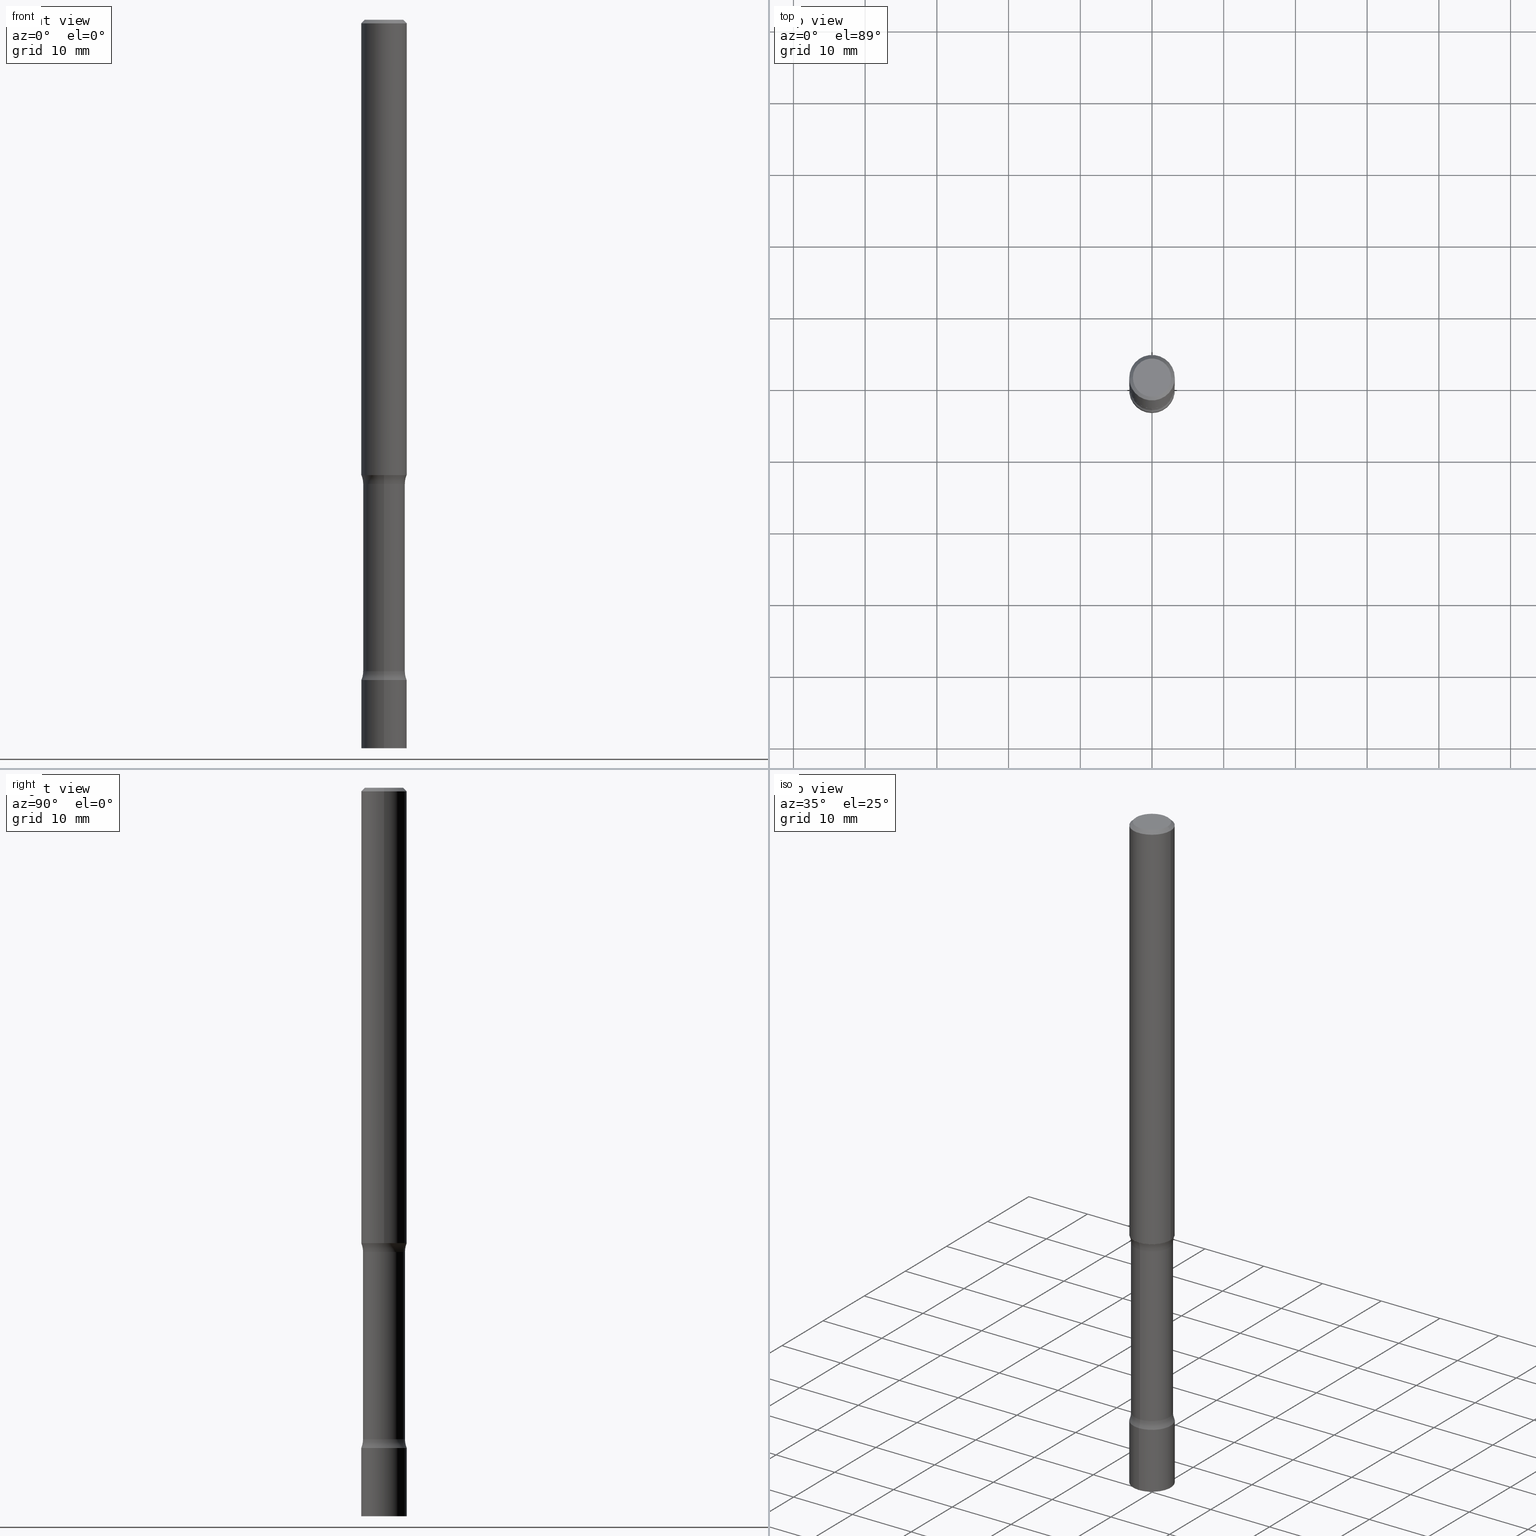
[diagram: canonical four-view strip — front | top / right | iso, engineering-drawing reading convention]
A machine part, canonical four-view strip (front | top / right | iso — engineering-drawing reading convention). The complete STEP part file that produces these views, byte-faithful:
ISO-10303-21;
HEADER;
FILE_DESCRIPTION (( 'STEP AP203' ),
    '1' );
FILE_NAME ('32703.STEP',
    '2024-03-11T13:16:24',
    ( '' ),
    ( '' ),
    'SwSTEP 2.0',
    'SolidWorks 2023',
    '' );
FILE_SCHEMA (( 'CONFIG_CONTROL_DESIGN' ));
ENDSEC;

DATA;
#1 = APPROVAL_STATUS ( 'not_yet_approved' ) ;
#2 = VECTOR ( 'NONE', #157, 39.37007874015748143 ) ;
#3 = PERSON_AND_ORGANIZATION ( #384, #494 ) ;
#4 = EDGE_CURVE ( 'NONE', #483, #436, #139, .T. ) ;
#5 = CALENDAR_DATE ( 2024, 11, 3 ) ;
#6 = DIRECTION ( 'NONE',  ( -1.000000000000000000, 6.982962677686265922E-15, -4.883557194083112901E-29 ) ) ;
#7 = AXIS2_PLACEMENT_3D ( 'NONE', #457, #26, #105 ) ;
#8 = AXIS2_PLACEMENT_3D ( 'NONE', #311, #435, #426 ) ;
#9 = VERTEX_POINT ( 'NONE', #44 ) ;
#10 = CARTESIAN_POINT ( 'NONE',  ( 0.1249999999999996947, -9.273918764983021797E-16, -0.02000000000000000042 ) ) ;
#11 = PLANE ( 'NONE',  #21 ) ;
#12 = EDGE_LOOP ( 'NONE', ( #270, #422, #403, #480 ) ) ;
#13 = DIRECTION ( 'NONE',  ( 6.982962677686265922E-15, 1.000000000000000000, -4.370956789862821938E-15 ) ) ;
#14 = AXIS2_PLACEMENT_3D ( 'NONE', #207, #166, #93 ) ;
#15 = DIRECTION ( 'NONE',  ( 2.665478544019061188E-29, -3.176414872088346532E-15, -1.000000000000000000 ) ) ;
#16 = DIRECTION ( 'NONE',  ( -2.445468806185136597E-29, 3.491481338843145583E-15, 1.000000000000000000 ) ) ;
#17 = CARTESIAN_POINT ( 'NONE',  ( -8.575622497213524026E-16, -0.1250000000000126288, -3.624999999999999556 ) ) ;
#18 = EDGE_CURVE ( 'NONE', #163, #394, #255, .T. ) ;
#19 = DIRECTION ( 'NONE',  ( -1.000000000000000000, 6.982962677686265922E-15, -4.883557194083112901E-29 ) ) ;
#20 = DIRECTION ( 'NONE',  ( 2.665478544019061188E-29, -3.176414872088346532E-15, -1.000000000000000000 ) ) ;
#21 = AXIS2_PLACEMENT_3D ( 'NONE', #160, #314, #498 ) ;
#22 = DIRECTION ( 'NONE',  ( 2.665478544019061188E-29, -3.176414872088346532E-15, -1.000000000000000000 ) ) ;
#23 = APPLICATION_PROTOCOL_DEFINITION ( 'international standard', 'config_control_design', 1994, #258 ) ;
#24 = CC_DESIGN_APPROVAL ( #321, ( #313 ) ) ;
#25 = DIRECTION ( 'NONE',  ( -2.445468806185136597E-29, 3.491481338843145583E-15, 1.000000000000000000 ) ) ;
#26 = DIRECTION ( 'NONE',  ( 1.000000000000000000, -6.860497997771530774E-15, 4.844657331024442733E-29 ) ) ;
#27 = FACE_OUTER_BOUND ( 'NONE', #151, .T. ) ;
#28 = DIMENSIONAL_EXPONENTS ( 1.000000000000000000, 0.000000000000000000, 0.000000000000000000, 0.000000000000000000, 0.000000000000000000, 0.000000000000000000, 0.000000000000000000 ) ;
#29 = FACE_OUTER_BOUND ( 'NONE', #443, .T. ) ;
#30 = AXIS2_PLACEMENT_3D ( 'NONE', #491, #456, #368 ) ;
#31 = EDGE_CURVE ( 'NONE', #301, #361, #309, .T. ) ;
#32 = CC_DESIGN_APPROVAL ( #265, ( #424 ) ) ;
#33 = CARTESIAN_POINT ( 'NONE',  ( 8.881784197002228539E-16, 0.1249999999999873157, -3.625000000000000444 ) ) ;
#34 = CC_DESIGN_PERSON_AND_ORGANIZATION_ASSIGNMENT ( #109, #261, ( #142 ) ) ;
#35 = COORDINATED_UNIVERSAL_TIME_OFFSET ( 5, 0, .BEHIND. ) ;
#36 = ADVANCED_BREP_SHAPE_REPRESENTATION ( '32703', ( #315, #316, #499, #381 ), #239 ) ;
#37 = DATE_TIME_ROLE ( 'classification_date' ) ;
#38 = CC_DESIGN_PERSON_AND_ORGANIZATION_ASSIGNMENT ( #40, #43, ( #424 ) ) ;
#39 = VERTEX_POINT ( 'NONE', #136 ) ;
#40 = PERSON_AND_ORGANIZATION ( #384, #494 ) ;
#41 = ORIENTED_EDGE ( 'NONE', *, *, #101, .T. ) ;
#42 = DIRECTION ( 'NONE',  ( 1.000000000000000000, -6.982962677686266711E-15, 0.000000000000000000 ) ) ;
#43 = PERSON_AND_ORGANIZATION_ROLE ( 'classification_officer' ) ;
#44 = CARTESIAN_POINT ( 'NONE',  ( 0.1250000000000000000, -9.601573681818646704E-15, -2.499999999999999556 ) ) ;
#45 = CONICAL_SURFACE ( 'NONE', #173, 0.1249999999999996947, 0.7853981633974480570 ) ;
#46 = EDGE_CURVE ( 'NONE', #505, #436, #324, .T. ) ;
#47 = AXIS2_PLACEMENT_3D ( 'NONE', #245, #458, #94 ) ;
#48 = ORIENTED_EDGE ( 'NONE', *, *, #244, .F. ) ;
#49 = CARTESIAN_POINT ( 'NONE',  ( -8.728703347106943948E-16, -0.1250000000000126288, -3.624999999999999112 ) ) ;
#50 = ORIENTED_EDGE ( 'NONE', *, *, #101, .F. ) ;
#51 = CARTESIAN_POINT ( 'NONE',  ( 5.866586448122475807E-29, -9.082543942776397875E-15, -2.499999999999999556 ) ) ;
#52 = ORIENTED_EDGE ( 'NONE', *, *, #121, .F. ) ;
#53 = DIRECTION ( 'NONE',  ( -1.000000000000000000, 6.982962677686266711E-15, 0.000000000000000000 ) ) ;
#54 = CIRCLE ( 'NONE', #204, 0.1150000000000002548 ) ;
#55 = DIRECTION ( 'NONE',  ( 2.665478544019061188E-29, -3.176414872088346532E-15, -1.000000000000000000 ) ) ;
#56 = CARTESIAN_POINT ( 'NONE',  ( 4.890937612370273159E-31, -6.982962677686291609E-17, -0.02000000000000000042 ) ) ;
#57 = CARTESIAN_POINT ( 'NONE',  ( -0.1249999999999998473, 8.881784197001241477E-16, -6.148668862818624520E-30 ) ) ;
#58 = CARTESIAN_POINT ( 'NONE',  ( -1.646519519465080587E-15, -0.2400000000000125921, -3.576010205144335874 ) ) ;
#59 = DIRECTION ( 'NONE',  ( -2.445468806185136877E-29, 3.491481338843145188E-15, 1.000000000000000000 ) ) ;
#60 = LINE ( 'NONE', #288, #467 ) ;
#61 =( LENGTH_UNIT ( ) NAMED_UNIT ( * ) SI_UNIT ( $, .METRE. ) );
#62 = AXIS2_PLACEMENT_3D ( 'NONE', #355, #192, #396 ) ;
#63 = ADVANCED_FACE ( 'NONE', ( #454 ), #338, .F. ) ;
#64 = DIRECTION ( 'NONE',  ( 1.000000000000000000, -6.982962677686270655E-15, 0.000000000000000000 ) ) ;
#65 = ADVANCED_FACE ( 'NONE', ( #450 ), #253, .F. ) ;
#66 = PRODUCT_DEFINITION_SHAPE ( 'NONE', 'NONE',  #313 ) ;
#67 = ORIENTED_EDGE ( 'NONE', *, *, #386, .F. ) ;
#68 = CC_DESIGN_DATE_AND_TIME_ASSIGNMENT ( #194, #470, ( #313 ) ) ;
#69 = CIRCLE ( 'NONE', #247, 0.1249999999999999861 ) ;
#70 = EDGE_LOOP ( 'NONE', ( #235, #122, #92, #262 ) ) ;
#71 = AXIS2_PLACEMENT_3D ( 'NONE', #211, #419, #182 ) ;
#72 = PERSON_AND_ORGANIZATION ( #384, #494 ) ;
#73 = ADVANCED_FACE ( 'NONE', ( #168 ), #375, .F. ) ;
#74 = DATE_AND_TIME ( #80, #303 ) ;
#75 = LINE ( 'NONE', #388, #503 ) ;
#76 = ORIENTED_EDGE ( 'NONE', *, *, #46, .F. ) ;
#77 = APPROVAL_DATE_TIME ( #74, #321 ) ;
#78 = VERTEX_POINT ( 'NONE', #99 ) ;
#79 = AXIS2_PLACEMENT_3D ( 'NONE', #98, #369, #124 ) ;
#80 = CALENDAR_DATE ( 2024, 11, 3 ) ;
#81 = ORIENTED_EDGE ( 'NONE', *, *, #304, .F. ) ;
#82 = VERTEX_POINT ( 'NONE', #104 ) ;
#83 = ORIENTED_EDGE ( 'NONE', *, *, #107, .T. ) ;
#84 = EDGE_CURVE ( 'NONE', #427, #361, #293, .T. ) ;
#85 = ORIENTED_EDGE ( 'NONE', *, *, #312, .F. ) ;
#86 = ORIENTED_EDGE ( 'NONE', *, *, #481, .F. ) ;
#87 = LOCAL_TIME ( 9, 16, 24.00000000000000000, #190 ) ;
#88 = CIRCLE ( 'NONE', #441, 0.1250000000000000000 ) ;
#89 = ORIENTED_EDGE ( 'NONE', *, *, #31, .F. ) ;
#90 = DIRECTION ( 'NONE',  ( 1.000000000000000000, -6.982962677686265922E-15, 4.876176775795935793E-29 ) ) ;
#91 = EDGE_CURVE ( 'NONE', #39, #278, #60, .T. ) ;
#92 = ORIENTED_EDGE ( 'NONE', *, *, #116, .T. ) ;
#93 = DIRECTION ( 'NONE',  ( -6.982962677686265922E-15, -1.000000000000000000, 3.491313289345044808E-15 ) ) ;
#94 = DIRECTION ( 'NONE',  ( 1.000000000000000000, -6.982962677686266711E-15, 4.876176775795935793E-29 ) ) ;
#95 = CARTESIAN_POINT ( 'NONE',  ( 9.781875224740546387E-29, -1.396592535537258233E-14, -4.000000000000000000 ) ) ;
#96 = CIRCLE ( 'NONE', #162, 0.1250000000000000000 ) ;
#97 = DIRECTION ( 'NONE',  ( 6.982962677686266711E-15, 1.000000000000000000, -3.176414872088346138E-15 ) ) ;
#98 = CARTESIAN_POINT ( 'NONE',  ( 8.865249810143920344E-29, -1.265601067387578743E-14, -3.624999999999999556 ) ) ;
#99 = CARTESIAN_POINT ( 'NONE',  ( -8.232597597325263900E-16, -0.1150000000000094974, -2.548989794855662794 ) ) ;
#100 = MECHANICAL_CONTEXT ( 'NONE', #178, 'mechanical' ) ;
#101 = EDGE_CURVE ( 'NONE', #478, #39, #96, .T. ) ;
#102 = CARTESIAN_POINT ( 'NONE',  ( 6.113672015462840371E-29, -8.728703347107863365E-15, -2.499999999999999556 ) ) ;
#103 = CARTESIAN_POINT ( 'NONE',  ( 8.728703347108716912E-16, 0.1249999999999873157, -3.624999999999999556 ) ) ;
#104 = CARTESIAN_POINT ( 'NONE',  ( -8.575622497213847459E-16, -0.1250000000000093814, -2.499999999999999112 ) ) ;
#105 = DIRECTION ( 'NONE',  ( 6.860497997771531562E-15, 1.000000000000000000, 0.000000000000000000 ) ) ;
#106 = CONICAL_SURFACE ( 'NONE', #390, 0.1249999999999996947, 0.7853981633974480570 ) ;
#107 = EDGE_CURVE ( 'NONE', #505, #78, #54, .T. ) ;
#108 = DIRECTION ( 'NONE',  ( -1.000000000000000000, 6.982962677686265922E-15, -4.876176775795935793E-29 ) ) ;
#109 = PERSON_AND_ORGANIZATION ( #384, #494 ) ;
#110 = ORIENTED_EDGE ( 'NONE', *, *, #276, .T. ) ;
#111 = DATE_AND_TIME ( #348, #453 ) ;
#112 = CIRCLE ( 'NONE', #502, 0.1250000000000000000 ) ;
#113 = ORIENTED_EDGE ( 'NONE', *, *, #116, .F. ) ;
#114 = APPROVAL_PERSON_ORGANIZATION ( #72, #280, #393 ) ;
#115 = EDGE_LOOP ( 'NONE', ( #156, #50 ) ) ;
#116 = EDGE_CURVE ( 'NONE', #505, #275, #195, .T. ) ;
#117 = DATE_AND_TIME ( #306, #87 ) ;
#118 = PERSON_AND_ORGANIZATION ( #384, #494 ) ;
#119 = DIRECTION ( 'NONE',  ( -2.445468806185136597E-29, 3.491481338843145583E-15, 1.000000000000000000 ) ) ;
#120 = AXIS2_PLACEMENT_3D ( 'NONE', #500, #371, #97 ) ;
#121 = EDGE_CURVE ( 'NONE', #9, #301, #329, .T. ) ;
#122 = ORIENTED_EDGE ( 'NONE', *, *, #107, .F. ) ;
#123 = ORIENTED_EDGE ( 'NONE', *, *, #506, .F. ) ;
#124 = DIRECTION ( 'NONE',  ( 6.982962677686265922E-15, 1.000000000000000000, -4.370956789862821938E-15 ) ) ;
#125 = AXIS2_PLACEMENT_3D ( 'NONE', #161, #15, #482 ) ;
#126 = ORIENTED_EDGE ( 'NONE', *, *, #428, .T. ) ;
#127 = DIRECTION ( 'NONE',  ( 1.000000000000000000, -6.860497997771530774E-15, 4.844657331024442733E-29 ) ) ;
#128 = ORIENTED_EDGE ( 'NONE', *, *, #386, .T. ) ;
#129 = FACE_OUTER_BOUND ( 'NONE', #201, .T. ) ;
#130 = CARTESIAN_POINT ( 'NONE',  ( 0.1249999999999998473, -8.728703347107822541E-16, 6.095220969744912034E-30 ) ) ;
#131 = FACE_OUTER_BOUND ( 'NONE', #477, .T. ) ;
#132 = CLOSED_SHELL ( 'NONE', ( #402, #370, #417, #299 ) ) ;
#133 = CIRCLE ( 'NONE', #125, 0.1250000000000003053 ) ;
#134 = CARTESIAN_POINT ( 'NONE',  ( 5.997167695186142229E-29, -9.238155855736485446E-15, -2.548989794855663238 ) ) ;
#135 = AXIS2_PLACEMENT_3D ( 'NONE', #289, #438, #451 ) ;
#136 = CARTESIAN_POINT ( 'NONE',  ( -8.728703347106854215E-16, -0.1250000000000139611, -3.999999999999999556 ) ) ;
#137 = PLANE ( 'NONE',  #170 ) ;
#138 = CYLINDRICAL_SURFACE ( 'NONE', #47, 0.1249999999999998473 ) ;
#139 = CIRCLE ( 'NONE', #337, 0.1249999999999999306 ) ;
#140 = AXIS2_PLACEMENT_3D ( 'NONE', #404, #20, #490 ) ;
#141 = EDGE_CURVE ( 'NONE', #427, #9, #354, .T. ) ;
#142 = PRODUCT ( '32703', '32703', '', ( #100 ) ) ;
#143 = CARTESIAN_POINT ( 'NONE',  ( 0.000000000000000000, 0.000000000000000000, 0.000000000000000000 ) ) ;
#144 = COORDINATED_UNIVERSAL_TIME_OFFSET ( 5, 0, .BEHIND. ) ;
#145 = CIRCLE ( 'NONE', #7, 0.1250000000000000278 ) ;
#146 = ADVANCED_FACE ( 'NONE', ( #497 ), #138, .T. ) ;
#147 = APPROVAL_STATUS ( 'not_yet_approved' ) ;
#148 = DIRECTION ( 'NONE',  ( 1.000000000000000000, -6.982962677686265922E-15, 4.876176775795935793E-29 ) ) ;
#149 = SECURITY_CLASSIFICATION_LEVEL ( 'unclassified' ) ;
#150 = DIRECTION ( 'NONE',  ( -2.445468806185136597E-29, 3.491481338843145583E-15, 1.000000000000000000 ) ) ;
#151 = EDGE_LOOP ( 'NONE', ( #85, #128, #231, #86 ) ) ;
#152 = ORIENTED_EDGE ( 'NONE', *, *, #158, .T. ) ;
#153 = DIRECTION ( 'NONE',  ( -6.982962677686265922E-15, -1.000000000000000000, 0.000000000000000000 ) ) ;
#154 = LINE ( 'NONE', #10, #2 ) ;
#155 = AXIS2_PLACEMENT_3D ( 'NONE', #102, #25, #175 ) ;
#156 = ORIENTED_EDGE ( 'NONE', *, *, #238, .F. ) ;
#157 = DIRECTION ( 'NONE',  ( 0.7071067811865473507, -7.319954787623256045E-15, -0.7071067811865476838 ) ) ;
#158 = EDGE_CURVE ( 'NONE', #9, #427, #112, .T. ) ;
#159 = ORIENTED_EDGE ( 'NONE', *, *, #31, .T. ) ;
#160 = CARTESIAN_POINT ( 'NONE',  ( 8.864824422421120163E-29, -1.265661985330640259E-14, -3.624999999999999556 ) ) ;
#161 = CARTESIAN_POINT ( 'NONE',  ( 5.866586448122475807E-29, -9.082543942776397875E-15, -2.499999999999999556 ) ) ;
#162 = AXIS2_PLACEMENT_3D ( 'NONE', #376, #208, #210 ) ;
#163 = VERTEX_POINT ( 'NONE', #217 ) ;
#164 = CARTESIAN_POINT ( 'NONE',  ( 4.890937612370273159E-31, -6.982962677686291609E-17, -0.02000000000000000042 ) ) ;
#165 = DIRECTION ( 'NONE',  ( 2.665478544019061188E-29, -3.176414872088346138E-15, -1.000000000000000000 ) ) ;
#166 = DIRECTION ( 'NONE',  ( -2.445586154522460485E-29, 3.491313289345045202E-15, 1.000000000000000000 ) ) ;
#167 = ADVANCED_FACE ( 'NONE', ( #27 ), #179, .T. ) ;
#168 = FACE_OUTER_BOUND ( 'NONE', #431, .T. ) ;
#169 = CYLINDRICAL_SURFACE ( 'NONE', #135, 0.1250000000000000000 ) ;
#170 = AXIS2_PLACEMENT_3D ( 'NONE', #252, #294, #459 ) ;
#171 = CIRCLE ( 'NONE', #281, 0.1049999999999997047 ) ;
#172 = DIRECTION ( 'NONE',  ( -6.982962677686265922E-15, -1.000000000000000000, 0.000000000000000000 ) ) ;
#173 = AXIS2_PLACEMENT_3D ( 'NONE', #164, #409, #319 ) ;
#174 = LINE ( 'NONE', #259, #468 ) ;
#175 = DIRECTION ( 'NONE',  ( 1.000000000000000000, -6.982962677686270655E-15, 0.000000000000000000 ) ) ;
#176 = EDGE_CURVE ( 'NONE', #436, #406, #263, .T. ) ;
#177 = FACE_OUTER_BOUND ( 'NONE', #353, .T. ) ;
#178 = APPLICATION_CONTEXT ( 'configuration controlled 3d designs of mechanical parts and assemblies' ) ;
#179 = CYLINDRICAL_SURFACE ( 'NONE', #452, 0.1150000000000001715 ) ;
#180 =( NAMED_UNIT ( * ) PLANE_ANGLE_UNIT ( ) SI_UNIT ( $, .RADIAN. ) );
#181 = AXIS2_PLACEMENT_3D ( 'NONE', #485, #279, #90 ) ;
#182 = DIRECTION ( 'NONE',  ( -6.982962677686265922E-15, -1.000000000000000000, 4.370956789862821938E-15 ) ) ;
#183 = CC_DESIGN_SECURITY_CLASSIFICATION ( #424, ( #398 ) ) ;
#184 = CYLINDRICAL_SURFACE ( 'NONE', #475, 0.1249999999999998473 ) ;
#185 = AXIS2_PLACEMENT_3D ( 'NONE', #51, #283, #246 ) ;
#186 = DIRECTION ( 'NONE',  ( -6.982962677686265922E-15, -1.000000000000000000, 4.370956789862821150E-15 ) ) ;
#187 = ORIENTED_EDGE ( 'NONE', *, *, #4, .T. ) ;
#188 = EDGE_CURVE ( 'NONE', #394, #163, #171, .T. ) ;
#189 = ORIENTED_EDGE ( 'NONE', *, *, #377, .T. ) ;
#190 = COORDINATED_UNIVERSAL_TIME_OFFSET ( 5, 0, .BEHIND. ) ;
#191 = ORIENTED_EDGE ( 'NONE', *, *, #188, .T. ) ;
#192 = DIRECTION ( 'NONE',  ( 2.665478544019061188E-29, -3.176414872088346532E-15, -1.000000000000000000 ) ) ;
#193 = CC_DESIGN_PERSON_AND_ORGANIZATION_ASSIGNMENT ( #226, #433, ( #398 ) ) ;
#194 = DATE_AND_TIME ( #5, #290 ) ;
#195 = CIRCLE ( 'NONE', #272, 0.1250000000000000278 ) ;
#196 = AXIS2_PLACEMENT_3D ( 'NONE', #330, #333, #462 ) ;
#197 = ORIENTED_EDGE ( 'NONE', *, *, #336, .T. ) ;
#198 = DIRECTION ( 'NONE',  ( 2.665478544019061188E-29, -3.176414872088346532E-15, -1.000000000000000000 ) ) ;
#199 = ORIENTED_EDGE ( 'NONE', *, *, #84, .F. ) ;
#200 = FACE_OUTER_BOUND ( 'NONE', #115, .T. ) ;
#201 = EDGE_LOOP ( 'NONE', ( #48, #282, #110, #448 ) ) ;
#202 = EDGE_LOOP ( 'NONE', ( #67, #474, #197, #113 ) ) ;
#203 = CARTESIAN_POINT ( 'NONE',  ( -7.889572697436285910E-16, -0.1150000000000140216, -3.999999999999999556 ) ) ;
#204 = AXIS2_PLACEMENT_3D ( 'NONE', #134, #446, #251 ) ;
#205 = AXIS2_PLACEMENT_3D ( 'NONE', #489, #16, #334 ) ;
#206 = DIRECTION ( 'NONE',  ( 6.982962677686265922E-15, 1.000000000000000000, -4.751039988981320237E-15 ) ) ;
#207 = CARTESIAN_POINT ( 'NONE',  ( 0.000000000000000000, 0.000000000000000000, 0.000000000000000000 ) ) ;
#208 = DIRECTION ( 'NONE',  ( -2.445586154522460485E-29, 3.491313289345045202E-15, 1.000000000000000000 ) ) ;
#209 = CARTESIAN_POINT ( 'NONE',  ( 8.865249810143920344E-29, -1.265601067387578743E-14, -3.624999999999999556 ) ) ;
#210 = DIRECTION ( 'NONE',  ( -6.982962677686265922E-15, -1.000000000000000000, 4.370956789862821150E-15 ) ) ;
#211 = CARTESIAN_POINT ( 'NONE',  ( 8.865249810143920344E-29, -1.265601067387578743E-14, -3.624999999999999556 ) ) ;
#212 = APPROVAL_PERSON_ORGANIZATION ( #420, #321, #342 ) ;
#213 = ADVANCED_FACE ( 'NONE', ( #274 ), #232, .T. ) ;
#214 = VECTOR ( 'NONE', #165, 39.37007874015748143 ) ;
#215 = DIRECTION ( 'NONE',  ( -2.445586154522460205E-29, 3.491313289345044808E-15, 1.000000000000000000 ) ) ;
#216 = PLANE ( 'NONE',  #439 ) ;
#217 = CARTESIAN_POINT ( 'NONE',  ( -0.1049999999999997047, 7.681258945454870110E-16, -5.249639473182151863E-30 ) ) ;
#218 = CARTESIAN_POINT ( 'NONE',  ( -0.1250000000000000278, -3.511088067242232183E-15, -2.499999999999999556 ) ) ;
#219 = ORIENTED_EDGE ( 'NONE', *, *, #312, .T. ) ;
#220 = AXIS2_PLACEMENT_3D ( 'NONE', #347, #119, #42 ) ;
#221 = CARTESIAN_POINT ( 'NONE',  ( 8.881784197002183179E-16, 0.1249999999999860251, -4.000000000000000888 ) ) ;
#222 = ORIENTED_EDGE ( 'NONE', *, *, #176, .T. ) ;
#223 = EDGE_CURVE ( 'NONE', #361, #301, #326, .T. ) ;
#224 = DESIGN_CONTEXT ( 'detailed design', #258, 'design' ) ;
#225 = SHAPE_DEFINITION_REPRESENTATION ( #66, #36 ) ;
#226 = PERSON_AND_ORGANIZATION ( #384, #494 ) ;
#227 = ADVANCED_FACE ( 'NONE', ( #350 ), #237, .F. ) ;
#228 = ORIENTED_EDGE ( 'NONE', *, *, #238, .T. ) ;
#229 = CIRCLE ( 'NONE', #79, 0.1249999999999999861 ) ;
#230 = EDGE_LOOP ( 'NONE', ( #189, #432 ) ) ;
#231 = ORIENTED_EDGE ( 'NONE', *, *, #46, .T. ) ;
#232 = CYLINDRICAL_SURFACE ( 'NONE', #62, 0.1150000000000001715 ) ;
#233 = ORIENTED_EDGE ( 'NONE', *, *, #84, .T. ) ;
#234 = EDGE_LOOP ( 'NONE', ( #228, #126, #123, #360 ) ) ;
#235 = ORIENTED_EDGE ( 'NONE', *, *, #472, .F. ) ;
#236 = FACE_OUTER_BOUND ( 'NONE', #399, .T. ) ;
#237 = TOROIDAL_SURFACE ( 'NONE', #8, 0.2400000000000002687, 0.1250000000000000278 ) ;
#238 = EDGE_CURVE ( 'NONE', #39, #478, #88, .T. ) ;
#239 =( GEOMETRIC_REPRESENTATION_CONTEXT ( 3 ) GLOBAL_UNCERTAINTY_ASSIGNED_CONTEXT ( ( #445 ) ) GLOBAL_UNIT_ASSIGNED_CONTEXT ( ( #378, #180, #335 ) ) REPRESENTATION_CONTEXT ( 'NONE', 'WORKASPACE' ) );
#240 = ORIENTED_EDGE ( 'NONE', *, *, #488, .T. ) ;
#241 = CYLINDRICAL_SURFACE ( 'NONE', #14, 0.1250000000000000000 ) ;
#242 = ORIENTED_EDGE ( 'NONE', *, *, #223, .F. ) ;
#243 = DIRECTION ( 'NONE',  ( 2.665478544019061188E-29, -3.176414872088346532E-15, -1.000000000000000000 ) ) ;
#244 = EDGE_CURVE ( 'NONE', #394, #301, #154, .T. ) ;
#245 = CARTESIAN_POINT ( 'NONE',  ( 0.000000000000000000, 0.000000000000000000, 0.000000000000000000 ) ) ;
#246 = DIRECTION ( 'NONE',  ( 6.982962677686265922E-15, 1.000000000000000000, -4.370956789862810105E-15 ) ) ;
#247 = AXIS2_PLACEMENT_3D ( 'NONE', #209, #243, #13 ) ;
#248 = TOROIDAL_SURFACE ( 'NONE', #310, 0.2400000000000002687, 0.1250000000000000278 ) ;
#249 = CARTESIAN_POINT ( 'NONE',  ( 8.864824422421120163E-29, -1.265661985330640259E-14, -3.624999999999999556 ) ) ;
#250 = CARTESIAN_POINT ( 'NONE',  ( -8.232597597324959202E-16, -0.1150000000000126060, -3.576010205144335874 ) ) ;
#251 = DIRECTION ( 'NONE',  ( 6.982962677686265133E-15, 1.000000000000000000, -4.751039988981317081E-15 ) ) ;
#252 = CARTESIAN_POINT ( 'NONE',  ( 6.113672015462840371E-29, -8.728703347107863365E-15, -2.499999999999999556 ) ) ;
#253 = PLANE ( 'NONE',  #380 ) ;
#254 = CARTESIAN_POINT ( 'NONE',  ( 8.030407079339822620E-16, 0.1149999999999910261, -2.548989794855663682 ) ) ;
#255 = CIRCLE ( 'NONE', #205, 0.1049999999999997047 ) ;
#256 = CARTESIAN_POINT ( 'NONE',  ( 6.113672015462840371E-29, -8.728703347107863365E-15, -2.499999999999999556 ) ) ;
#257 = DIRECTION ( 'NONE',  ( 6.982962677686265922E-15, 1.000000000000000000, -4.751039988981323392E-15 ) ) ;
#258 = APPLICATION_CONTEXT ( 'configuration controlled 3d designs of mechanical parts and assemblies' ) ;
#259 = CARTESIAN_POINT ( 'NONE',  ( 8.881784197001251337E-16, 0.1250000000000000000, -4.364141611681306010E-16 ) ) ;
#260 = ADVANCED_FACE ( 'NONE', ( #479 ), #184, .T. ) ;
#261 = PERSON_AND_ORGANIZATION_ROLE ( 'design_owner' ) ;
#262 = ORIENTED_EDGE ( 'NONE', *, *, #304, .T. ) ;
#263 = CIRCLE ( 'NONE', #410, 0.1150000000000001021 ) ;
#264 = APPROVAL_DATE_TIME ( #117, #265 ) ;
#265 = APPROVAL ( #147, 'UNSPECIFIED' ) ;
#266 = ORIENTED_EDGE ( 'NONE', *, *, #188, .F. ) ;
#267 = ORIENTED_EDGE ( 'NONE', *, *, #377, .F. ) ;
#268 = CARTESIAN_POINT ( 'NONE',  ( 8.728703347108441797E-16, 0.1249999999999912015, -2.500000000000000000 ) ) ;
#269 = ORIENTED_EDGE ( 'NONE', *, *, #91, .T. ) ;
#270 = ORIENTED_EDGE ( 'NONE', *, *, #284, .F. ) ;
#271 = COORDINATED_UNIVERSAL_TIME_OFFSET ( 5, 0, .BEHIND. ) ;
#272 = AXIS2_PLACEMENT_3D ( 'NONE', #414, #19, #172 ) ;
#273 = ORIENTED_EDGE ( 'NONE', *, *, #428, .F. ) ;
#274 = FACE_OUTER_BOUND ( 'NONE', #397, .T. ) ;
#275 = VERTEX_POINT ( 'NONE', #268 ) ;
#276 = EDGE_CURVE ( 'NONE', #163, #361, #75, .T. ) ;
#277 = DIRECTION ( 'NONE',  ( 2.665478544019061188E-29, -3.176414872088346138E-15, -1.000000000000000000 ) ) ;
#278 = VERTEX_POINT ( 'NONE', #49 ) ;
#279 = DIRECTION ( 'NONE',  ( -2.438088387897960049E-29, 3.491481338843145188E-15, 1.000000000000000000 ) ) ;
#280 = APPROVAL ( #1, 'UNSPECIFIED' ) ;
#281 = AXIS2_PLACEMENT_3D ( 'NONE', #460, #405, #148 ) ;
#282 = ORIENTED_EDGE ( 'NONE', *, *, #18, .F. ) ;
#283 = DIRECTION ( 'NONE',  ( 2.665478544019061188E-29, -3.176414872088346532E-15, -1.000000000000000000 ) ) ;
#284 = EDGE_CURVE ( 'NONE', #341, #483, #69, .T. ) ;
#285 = CARTESIAN_POINT ( 'NONE',  ( 8.721175916554098787E-29, -1.251972099869490345E-14, -3.576010205144336318 ) ) ;
#286 = DIRECTION ( 'NONE',  ( 2.445468806185136597E-29, -3.491481338843145583E-15, -1.000000000000000000 ) ) ;
#287 = PRODUCT_RELATED_PRODUCT_CATEGORY ( 'detail', '', ( #142 ) ) ;
#288 = CARTESIAN_POINT ( 'NONE',  ( -8.728703347107832402E-16, -0.1250000000000000000, 4.364141611681306010E-16 ) ) ;
#289 = CARTESIAN_POINT ( 'NONE',  ( 0.000000000000000000, 0.000000000000000000, 0.000000000000000000 ) ) ;
#290 = LOCAL_TIME ( 9, 16, 24.00000000000000000, #271 ) ;
#291 = CC_DESIGN_APPROVAL ( #280, ( #398 ) ) ;
#292 = DIRECTION ( 'NONE',  ( -6.982962677686265922E-15, -1.000000000000000000, 3.176414872088346138E-15 ) ) ;
#293 = LINE ( 'NONE', #57, #400 ) ;
#294 = DIRECTION ( 'NONE',  ( 2.665478544019061188E-29, -3.176414872088346138E-15, -1.000000000000000000 ) ) ;
#295 = DIRECTION ( 'NONE',  ( 6.982962677686265922E-15, 1.000000000000000000, -4.751039988981323392E-15 ) ) ;
#296 = DIRECTION ( 'NONE',  ( -2.445586154522460205E-29, 3.491313289345044808E-15, 1.000000000000000000 ) ) ;
#297 = CIRCLE ( 'NONE', #140, 0.1150000000000002548 ) ;
#298 = CARTESIAN_POINT ( 'NONE',  ( 8.030407079340086889E-16, 0.1149999999999876121, -3.576010205144337206 ) ) ;
#299 = ADVANCED_FACE ( 'NONE', ( #200 ), #442, .T. ) ;
#300 = DIRECTION ( 'NONE',  ( 0.000000000000000000, 0.000000000000000000, 1.000000000000000000 ) ) ;
#301 = VERTEX_POINT ( 'NONE', #323 ) ;
#302 = PERSON_AND_ORGANIZATION_ROLE ( 'design_supplier' ) ;
#303 = LOCAL_TIME ( 9, 16, 24.00000000000000000, #144 ) ;
#304 = EDGE_CURVE ( 'NONE', #275, #82, #133, .T. ) ;
#305 = DIRECTION ( 'NONE',  ( -2.445586154522460485E-29, 3.491313289345045202E-15, 1.000000000000000000 ) ) ;
#306 = CALENDAR_DATE ( 2024, 11, 3 ) ;
#307 = ORIENTED_EDGE ( 'NONE', *, *, #158, .F. ) ;
#308 = EDGE_LOOP ( 'NONE', ( #152, #233, #89, #52 ) ) ;
#309 = CIRCLE ( 'NONE', #30, 0.1249999999999996947 ) ;
#310 = AXIS2_PLACEMENT_3D ( 'NONE', #401, #198, #356 ) ;
#311 = CARTESIAN_POINT ( 'NONE',  ( 5.995020123342904875E-29, -9.241231300848198479E-15, -2.548989794855663238 ) ) ;
#312 = EDGE_CURVE ( 'NONE', #78, #406, #325, .T. ) ;
#313 = PRODUCT_DEFINITION ( 'UNKNOWN', '', #398, #224 ) ;
#314 = DIRECTION ( 'NONE',  ( 2.445586154522460485E-29, -3.491313289345044808E-15, -1.000000000000000000 ) ) ;
#315 = MANIFOLD_SOLID_BREP ( 'Body-Move/Copy2[1]', #132 ) ;
#316 = MANIFOLD_SOLID_BREP ( 'Body-Move/Copy2[2]', #374 ) ;
#317 = PLANE ( 'NONE',  #181 ) ;
#318 = ORIENTED_EDGE ( 'NONE', *, *, #276, .F. ) ;
#319 = DIRECTION ( 'NONE',  ( -1.000000000000000000, 6.982962677686266711E-15, 0.000000000000000000 ) ) ;
#320 = ORIENTED_EDGE ( 'NONE', *, *, #506, .T. ) ;
#321 = APPROVAL ( #382, 'UNSPECIFIED' ) ;
#322 = DIRECTION ( 'NONE',  ( 2.665478544019061188E-29, -3.176414872088346532E-15, -1.000000000000000000 ) ) ;
#323 = CARTESIAN_POINT ( 'NONE',  ( 0.1249999999999996947, -9.273918764983021797E-16, -0.02000000000000000042 ) ) ;
#324 = LINE ( 'NONE', #331, #214 ) ;
#325 = LINE ( 'NONE', #203, #416 ) ;
#326 = CIRCLE ( 'NONE', #220, 0.1249999999999996947 ) ;
#327 = APPROVAL_PERSON_ORGANIZATION ( #3, #265, #430 ) ;
#328 = ADVANCED_FACE ( 'NONE', ( #407 ), #317, .F. ) ;
#329 = LINE ( 'NONE', #130, #493 ) ;
#330 = CARTESIAN_POINT ( 'NONE',  ( 8.865249810143920344E-29, -1.265601067387578743E-14, -3.624999999999999556 ) ) ;
#331 = CARTESIAN_POINT ( 'NONE',  ( 8.030407079340205218E-16, 0.1149999999999863215, -4.000000000000000888 ) ) ;
#332 = CC_DESIGN_PERSON_AND_ORGANIZATION_ASSIGNMENT ( #476, #425, ( #313 ) ) ;
#333 = DIRECTION ( 'NONE',  ( -2.445586154522460485E-29, 3.491313289345045202E-15, 1.000000000000000000 ) ) ;
#334 = DIRECTION ( 'NONE',  ( 1.000000000000000000, -6.982962677686265922E-15, 4.876176775795935793E-29 ) ) ;
#335 =( NAMED_UNIT ( * ) SI_UNIT ( $, .STERADIAN. ) SOLID_ANGLE_UNIT ( ) );
#336 = EDGE_CURVE ( 'NONE', #82, #275, #423, .T. ) ;
#337 = AXIS2_PLACEMENT_3D ( 'NONE', #349, #6, #153 ) ;
#338 = TOROIDAL_SURFACE ( 'NONE', #120, 0.2400000000000000744, 0.1249999999999999306 ) ;
#339 = AXIS2_PLACEMENT_3D ( 'NONE', #340, #504, #257 ) ;
#340 = CARTESIAN_POINT ( 'NONE',  ( 8.734668563080253921E-29, -1.250039876091570143E-14, -3.576010205144336318 ) ) ;
#341 = VERTEX_POINT ( 'NONE', #17 ) ;
#342 = APPROVAL_ROLE ( '' ) ;
#343 = CARTESIAN_POINT ( 'NONE',  ( 0.000000000000000000, 0.000000000000000000, 0.000000000000000000 ) ) ;
#344 = AXIS2_PLACEMENT_3D ( 'NONE', #95, #492, #487 ) ;
#345 = CC_DESIGN_DATE_AND_TIME_ASSIGNMENT ( #391, #37, ( #424 ) ) ;
#346 = DIRECTION ( 'NONE',  ( -0.7071067811865473507, 2.468850131082255088E-15, -0.7071067811865476838 ) ) ;
#347 = CARTESIAN_POINT ( 'NONE',  ( 4.890937612370273159E-31, -6.982962677686291609E-17, -0.02000000000000000042 ) ) ;
#348 = CALENDAR_DATE ( 2024, 11, 3 ) ;
#349 = CARTESIAN_POINT ( 'NONE',  ( 1.675911042644791535E-15, 0.2399999999999875289, -3.576010205144337206 ) ) ;
#350 = FACE_OUTER_BOUND ( 'NONE', #70, .T. ) ;
#351 = EDGE_CURVE ( 'NONE', #341, #406, #461, .T. ) ;
#352 = CIRCLE ( 'NONE', #71, 0.1249999999999999861 ) ;
#353 = EDGE_LOOP ( 'NONE', ( #81, #383 ) ) ;
#354 = CIRCLE ( 'NONE', #155, 0.1250000000000000000 ) ;
#355 = CARTESIAN_POINT ( 'NONE',  ( 9.864804264151068149E-29, -1.384716625090891886E-14, -4.000000000000000000 ) ) ;
#356 = DIRECTION ( 'NONE',  ( 6.982962677686266711E-15, 1.000000000000000000, -3.176414872088346532E-15 ) ) ;
#357 = ORIENTED_EDGE ( 'NONE', *, *, #176, .F. ) ;
#358 = EDGE_LOOP ( 'NONE', ( #266, #392, #159, #318 ) ) ;
#359 = CARTESIAN_POINT ( 'NONE',  ( -0.1249999999999996947, 8.030407079339181671E-16, -0.02000000000000000042 ) ) ;
#360 = ORIENTED_EDGE ( 'NONE', *, *, #91, .F. ) ;
#361 = VERTEX_POINT ( 'NONE', #359 ) ;
#362 = ADVANCED_FACE ( 'NONE', ( #129 ), #106, .T. ) ;
#363 = CARTESIAN_POINT ( 'NONE',  ( 0.1049999999999997047, -8.238720831321554950E-16, 5.444276250344135351E-30 ) ) ;
#364 = CLOSED_SHELL ( 'NONE', ( #213, #63, #413, #227, #449, #65, #73, #167 ) ) ;
#365 = AXIS2_PLACEMENT_3D ( 'NONE', #285, #22, #411 ) ;
#366 = CARTESIAN_POINT ( 'NONE',  ( 8.734668563080253921E-29, -1.250039876091570143E-14, -3.576010205144336318 ) ) ;
#367 = FACE_OUTER_BOUND ( 'NONE', #234, .T. ) ;
#368 = DIRECTION ( 'NONE',  ( 1.000000000000000000, -6.982962677686266711E-15, 0.000000000000000000 ) ) ;
#369 = DIRECTION ( 'NONE',  ( 2.665478544019061188E-29, -3.176414872088346532E-15, -1.000000000000000000 ) ) ;
#370 = ADVANCED_FACE ( 'NONE', ( #131 ), #241, .T. ) ;
#371 = DIRECTION ( 'NONE',  ( 2.665478544019061188E-29, -3.176414872088346532E-15, -1.000000000000000000 ) ) ;
#372 = LENGTH_MEASURE_WITH_UNIT ( LENGTH_MEASURE( 0.02539999999999999897 ), #61 );
#373 = CIRCLE ( 'NONE', #196, 0.1249999999999999861 ) ;
#374 = CLOSED_SHELL ( 'NONE', ( #260, #395, #362, #465, #328, #146 ) ) ;
#375 = TOROIDAL_SURFACE ( 'NONE', #365, 0.2400000000000000744, 0.1249999999999999306 ) ;
#376 = CARTESIAN_POINT ( 'NONE',  ( 9.782344618089841940E-29, -1.396525315738017923E-14, -4.000000000000000000 ) ) ;
#377 = EDGE_CURVE ( 'NONE', #483, #341, #229, .T. ) ;
#378 =( CONVERSION_BASED_UNIT ( 'INCH', #372 ) LENGTH_UNIT ( ) NAMED_UNIT ( #28 ) );
#379 = LOCAL_TIME ( 9, 16, 24.00000000000000000, #507 ) ;
#380 = AXIS2_PLACEMENT_3D ( 'NONE', #249, #415, #292 ) ;
#381 = AXIS2_PLACEMENT_3D ( 'NONE', #143, #300, #463 ) ;
#382 = APPROVAL_STATUS ( 'not_yet_approved' ) ;
#383 = ORIENTED_EDGE ( 'NONE', *, *, #336, .F. ) ;
#384 = PERSON ( 'UNSPECIFIED', 'UNSPECIFIED', 'UNSPECIFIED', ('UNSPECIFIED'), ('UNSPECIFIED'), ('UNSPECIFIED') ) ;
#385 = CARTESIAN_POINT ( 'NONE',  ( 9.782344618089841940E-29, -1.396525315738017923E-14, -4.000000000000000000 ) ) ;
#386 = EDGE_CURVE ( 'NONE', #78, #505, #297, .T. ) ;
#387 = CALENDAR_DATE ( 2024, 11, 3 ) ;
#388 = CARTESIAN_POINT ( 'NONE',  ( -0.1249999999999996947, 8.030407079339181671E-16, -0.02000000000000000042 ) ) ;
#389 = CC_DESIGN_PERSON_AND_ORGANIZATION_ASSIGNMENT ( #118, #302, ( #398 ) ) ;
#390 = AXIS2_PLACEMENT_3D ( 'NONE', #56, #286, #53 ) ;
#391 = DATE_AND_TIME ( #387, #379 ) ;
#392 = ORIENTED_EDGE ( 'NONE', *, *, #244, .T. ) ;
#393 = APPROVAL_ROLE ( '' ) ;
#394 = VERTEX_POINT ( 'NONE', #363 ) ;
#395 = ADVANCED_FACE ( 'NONE', ( #444 ), #45, .T. ) ;
#396 = DIRECTION ( 'NONE',  ( 6.982962677686265922E-15, 1.000000000000000000, -4.751039988981320237E-15 ) ) ;
#397 = EDGE_LOOP ( 'NONE', ( #83, #219, #357, #76 ) ) ;
#398 = PRODUCT_DEFINITION_FORMATION_WITH_SPECIFIED_SOURCE ( 'ANY', '', #142, .NOT_KNOWN. ) ;
#399 = EDGE_LOOP ( 'NONE', ( #320, #240 ) ) ;
#400 = VECTOR ( 'NONE', #59, 39.37007874015748143 ) ;
#401 = CARTESIAN_POINT ( 'NONE',  ( 5.995020123342904875E-29, -9.241231300848198479E-15, -2.548989794855663238 ) ) ;
#402 = ADVANCED_FACE ( 'NONE', ( #367 ), #169, .T. ) ;
#403 = ORIENTED_EDGE ( 'NONE', *, *, #481, .T. ) ;
#404 = CARTESIAN_POINT ( 'NONE',  ( 5.997167695186142229E-29, -9.238155855736485446E-15, -2.548989794855663238 ) ) ;
#405 = DIRECTION ( 'NONE',  ( -2.445468806185136597E-29, 3.491481338843145583E-15, 1.000000000000000000 ) ) ;
#406 = VERTEX_POINT ( 'NONE', #250 ) ;
#407 = FACE_OUTER_BOUND ( 'NONE', #440, .T. ) ;
#408 = CARTESIAN_POINT ( 'NONE',  ( 9.864804264151068149E-29, -1.384716625090891886E-14, -4.000000000000000000 ) ) ;
#409 = DIRECTION ( 'NONE',  ( 2.445468806185136597E-29, -3.491481338843145583E-15, -1.000000000000000000 ) ) ;
#410 = AXIS2_PLACEMENT_3D ( 'NONE', #366, #322, #295 ) ;
#411 = DIRECTION ( 'NONE',  ( 6.982962677686266711E-15, 1.000000000000000000, -3.176414872088346138E-15 ) ) ;
#412 = FACE_OUTER_BOUND ( 'NONE', #202, .T. ) ;
#413 = ADVANCED_FACE ( 'NONE', ( #412 ), #248, .F. ) ;
#414 = CARTESIAN_POINT ( 'NONE',  ( 1.675911042644765699E-15, 0.2399999999999910261, -2.548989794855663682 ) ) ;
#415 = DIRECTION ( 'NONE',  ( -2.665478544019061188E-29, 3.176414872088346138E-15, 1.000000000000000000 ) ) ;
#416 = VECTOR ( 'NONE', #277, 39.37007874015748143 ) ;
#417 = ADVANCED_FACE ( 'NONE', ( #236 ), #11, .F. ) ;
#418 = DIRECTION ( 'NONE',  ( -2.445468806185136597E-29, 3.491481338843145583E-15, 1.000000000000000000 ) ) ;
#419 = DIRECTION ( 'NONE',  ( -2.445586154522460485E-29, 3.491313289345045202E-15, 1.000000000000000000 ) ) ;
#420 = PERSON_AND_ORGANIZATION ( #384, #494 ) ;
#421 = CIRCLE ( 'NONE', #339, 0.1150000000000001021 ) ;
#422 = ORIENTED_EDGE ( 'NONE', *, *, #351, .T. ) ;
#423 = CIRCLE ( 'NONE', #185, 0.1250000000000003053 ) ;
#424 = SECURITY_CLASSIFICATION ( '', '', #149 ) ;
#425 = PERSON_AND_ORGANIZATION_ROLE ( 'creator' ) ;
#426 = DIRECTION ( 'NONE',  ( 6.982962677686266711E-15, 1.000000000000000000, -3.176414872088346532E-15 ) ) ;
#427 = VERTEX_POINT ( 'NONE', #218 ) ;
#428 = EDGE_CURVE ( 'NONE', #478, #434, #174, .T. ) ;
#429 = ORIENTED_EDGE ( 'NONE', *, *, #18, .T. ) ;
#430 = APPROVAL_ROLE ( '' ) ;
#431 = EDGE_LOOP ( 'NONE', ( #486, #267, #187, #222 ) ) ;
#432 = ORIENTED_EDGE ( 'NONE', *, *, #284, .T. ) ;
#433 = PERSON_AND_ORGANIZATION_ROLE ( 'creator' ) ;
#434 = VERTEX_POINT ( 'NONE', #33 ) ;
#435 = DIRECTION ( 'NONE',  ( 2.665478544019061188E-29, -3.176414872088346532E-15, -1.000000000000000000 ) ) ;
#436 = VERTEX_POINT ( 'NONE', #298 ) ;
#437 = ORIENTED_EDGE ( 'NONE', *, *, #141, .T. ) ;
#438 = DIRECTION ( 'NONE',  ( -2.445586154522460485E-29, 3.491313289345045202E-15, 1.000000000000000000 ) ) ;
#439 = AXIS2_PLACEMENT_3D ( 'NONE', #455, #496, #108 ) ;
#440 = EDGE_LOOP ( 'NONE', ( #307, #473 ) ) ;
#441 = AXIS2_PLACEMENT_3D ( 'NONE', #385, #305, #186 ) ;
#442 = PLANE ( 'NONE',  #344 ) ;
#443 = EDGE_LOOP ( 'NONE', ( #429, #191 ) ) ;
#444 = FACE_OUTER_BOUND ( 'NONE', #358, .T. ) ;
#445 = UNCERTAINTY_MEASURE_WITH_UNIT (LENGTH_MEASURE( 1.000000000000000082E-05 ), #378, 'distance_accuracy_value', 'NONE');
#446 = DIRECTION ( 'NONE',  ( 2.665478544019061188E-29, -3.176414872088346532E-15, -1.000000000000000000 ) ) ;
#447 = DIRECTION ( 'NONE',  ( 6.860497997771530774E-15, 1.000000000000000000, 0.000000000000000000 ) ) ;
#448 = ORIENTED_EDGE ( 'NONE', *, *, #223, .T. ) ;
#449 = ADVANCED_FACE ( 'NONE', ( #177 ), #137, .F. ) ;
#450 = FACE_OUTER_BOUND ( 'NONE', #230, .T. ) ;
#451 = DIRECTION ( 'NONE',  ( -6.982962677686265922E-15, -1.000000000000000000, 3.491313289345044808E-15 ) ) ;
#452 = AXIS2_PLACEMENT_3D ( 'NONE', #408, #55, #206 ) ;
#453 = LOCAL_TIME ( 9, 16, 24.00000000000000000, #35 ) ;
#454 = FACE_OUTER_BOUND ( 'NONE', #12, .T. ) ;
#455 = CARTESIAN_POINT ( 'NONE',  ( 7.332110811570558550E-16, 0.1049999999999997047, -3.666055405785292587E-16 ) ) ;
#456 = DIRECTION ( 'NONE',  ( -2.445468806185136597E-29, 3.491481338843145583E-15, 1.000000000000000000 ) ) ;
#457 = CARTESIAN_POINT ( 'NONE',  ( -1.646519519465109183E-15, -0.2400000000000095390, -2.548989794855662794 ) ) ;
#458 = DIRECTION ( 'NONE',  ( -2.445468806185136597E-29, 3.491481338843145583E-15, 1.000000000000000000 ) ) ;
#459 = DIRECTION ( 'NONE',  ( 6.982962677686265922E-15, 1.000000000000000000, -3.176414872088346138E-15 ) ) ;
#460 = CARTESIAN_POINT ( 'NONE',  ( 0.000000000000000000, 0.000000000000000000, 0.000000000000000000 ) ) ;
#461 = CIRCLE ( 'NONE', #484, 0.1249999999999999306 ) ;
#462 = DIRECTION ( 'NONE',  ( -6.982962677686265922E-15, -1.000000000000000000, 4.370956789862821938E-15 ) ) ;
#463 = DIRECTION ( 'NONE',  ( 1.000000000000000000, 0.000000000000000000, 0.000000000000000000 ) ) ;
#464 = EDGE_LOOP ( 'NONE', ( #199, #437, #471, #242 ) ) ;
#465 = ADVANCED_FACE ( 'NONE', ( #29 ), #216, .F. ) ;
#466 = APPROVAL_DATE_TIME ( #111, #280 ) ;
#467 = VECTOR ( 'NONE', #215, 39.37007874015748143 ) ;
#468 = VECTOR ( 'NONE', #296, 39.37007874015748143 ) ;
#469 = DIRECTION ( 'NONE',  ( 1.000000000000000000, -6.982962677686266711E-15, 4.876176775795935793E-29 ) ) ;
#470 = DATE_TIME_ROLE ( 'creation_date' ) ;
#471 = ORIENTED_EDGE ( 'NONE', *, *, #121, .T. ) ;
#472 = EDGE_CURVE ( 'NONE', #78, #82, #145, .T. ) ;
#473 = ORIENTED_EDGE ( 'NONE', *, *, #141, .F. ) ;
#474 = ORIENTED_EDGE ( 'NONE', *, *, #472, .T. ) ;
#475 = AXIS2_PLACEMENT_3D ( 'NONE', #343, #150, #469 ) ;
#476 = PERSON_AND_ORGANIZATION ( #384, #494 ) ;
#477 = EDGE_LOOP ( 'NONE', ( #273, #41, #269, #508 ) ) ;
#478 = VERTEX_POINT ( 'NONE', #221 ) ;
#479 = FACE_OUTER_BOUND ( 'NONE', #308, .T. ) ;
#480 = ORIENTED_EDGE ( 'NONE', *, *, #4, .F. ) ;
#481 = EDGE_CURVE ( 'NONE', #406, #436, #421, .T. ) ;
#482 = DIRECTION ( 'NONE',  ( 6.982962677686265922E-15, 1.000000000000000000, -4.370956789862810105E-15 ) ) ;
#483 = VERTEX_POINT ( 'NONE', #103 ) ;
#484 = AXIS2_PLACEMENT_3D ( 'NONE', #58, #127, #447 ) ;
#485 = CARTESIAN_POINT ( 'NONE',  ( 6.113672015462840371E-29, -8.728703347107863365E-15, -2.499999999999999556 ) ) ;
#486 = ORIENTED_EDGE ( 'NONE', *, *, #351, .F. ) ;
#487 = DIRECTION ( 'NONE',  ( 6.982962677686265922E-15, 1.000000000000000000, -3.491313289345044808E-15 ) ) ;
#488 = EDGE_CURVE ( 'NONE', #434, #278, #373, .T. ) ;
#489 = CARTESIAN_POINT ( 'NONE',  ( 0.000000000000000000, 0.000000000000000000, 0.000000000000000000 ) ) ;
#490 = DIRECTION ( 'NONE',  ( 6.982962677686265133E-15, 1.000000000000000000, -4.751039988981317081E-15 ) ) ;
#491 = CARTESIAN_POINT ( 'NONE',  ( 4.890937612370273159E-31, -6.982962677686291609E-17, -0.02000000000000000042 ) ) ;
#492 = DIRECTION ( 'NONE',  ( 2.445586154522460485E-29, -3.491313289345044808E-15, -1.000000000000000000 ) ) ;
#493 = VECTOR ( 'NONE', #495, 39.37007874015748143 ) ;
#494 = ORGANIZATION ( 'UNSPECIFIED', 'UNSPECIFIED', '' ) ;
#495 = DIRECTION ( 'NONE',  ( -2.445468806185136877E-29, 3.491481338843145188E-15, 1.000000000000000000 ) ) ;
#496 = DIRECTION ( 'NONE',  ( 2.438088387897960049E-29, -3.491481338843145188E-15, -1.000000000000000000 ) ) ;
#497 = FACE_OUTER_BOUND ( 'NONE', #464, .T. ) ;
#498 = DIRECTION ( 'NONE',  ( 6.982962677686265922E-15, 1.000000000000000000, -3.491313289345044808E-15 ) ) ;
#499 = MANIFOLD_SOLID_BREP ( 'Body-Move/Copy2[4]', #364 ) ;
#500 = CARTESIAN_POINT ( 'NONE',  ( 8.721175916554098787E-29, -1.251972099869490345E-14, -3.576010205144336318 ) ) ;
#501 = APPLICATION_PROTOCOL_DEFINITION ( 'international standard', 'config_control_design', 1994, #178 ) ;
#502 = AXIS2_PLACEMENT_3D ( 'NONE', #256, #418, #64 ) ;
#503 = VECTOR ( 'NONE', #346, 39.37007874015748143 ) ;
#504 = DIRECTION ( 'NONE',  ( 2.665478544019061188E-29, -3.176414872088346532E-15, -1.000000000000000000 ) ) ;
#505 = VERTEX_POINT ( 'NONE', #254 ) ;
#506 = EDGE_CURVE ( 'NONE', #278, #434, #352, .T. ) ;
#507 = COORDINATED_UNIVERSAL_TIME_OFFSET ( 5, 0, .BEHIND. ) ;
#508 = ORIENTED_EDGE ( 'NONE', *, *, #488, .F. ) ;
ENDSEC;
END-ISO-10303-21;
